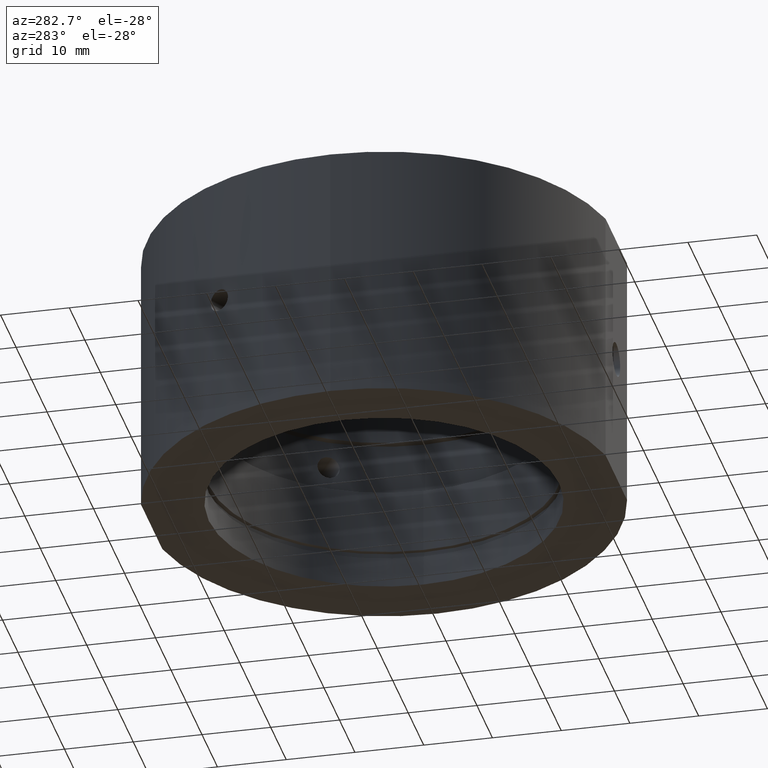
[diagram: clean part render]
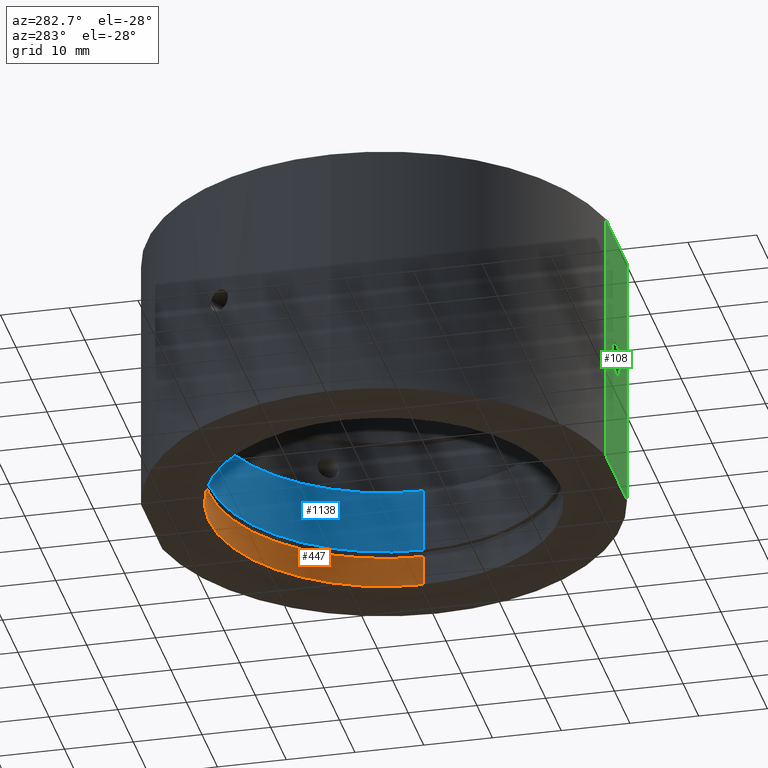
[diagram: same view with three faces highlighted in distinct colors, each labeled with its STEP entity id]
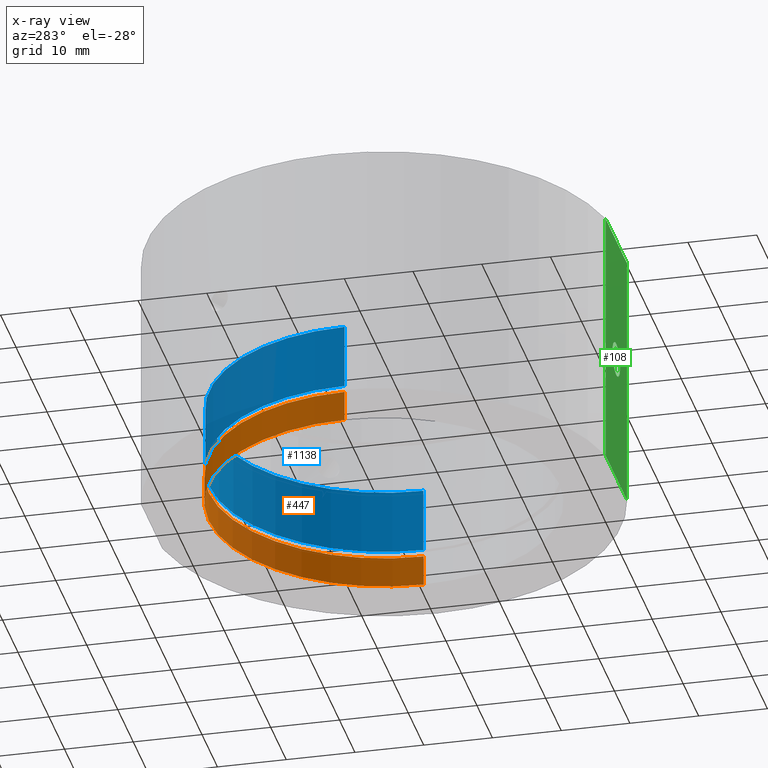
[diagram: x-ray of the same camera — body ghosted, the three highlighted faces saturated]
A machine part, auxiliary view with three faces highlighted in distinct colors.
The next image is the same camera in x-ray (body ghosted, the three faces saturated) — at least one of them is partly hidden behind the body in this view.
Their STEP definitions:

[orange] entity #447 — the highlighted cylindrical surface (partial cylindrical patch) has radius 25.5 mm, axis along (-0, -0, -1).
#12 = DIRECTION ( 'NONE',  ( -1.224646799147350500E-016, -0.0000000000000000000, -1.000000000000000000 ) ) ;
#17 = DIRECTION ( 'NONE',  ( -1.000000000000000000, 0.0000000000000000000, 1.360567432138672300E-016 ) ) ;
#31 = LINE ( 'NONE', #1313, #428 ) ;
#78 = CARTESIAN_POINT ( 'NONE',  ( 1.584578833305349900E-015, 0.0000000000000000000, -19.00000000000000000 ) ) ;
#236 = CARTESIAN_POINT ( 'NONE',  ( -25.50000000000000000, 0.0000000000000000000, -18.99999999999999600 ) ) ;
#383 = CARTESIAN_POINT ( 'NONE',  ( 0.0000000000000000000, 0.0000000000000000000, -31.93906810035839800 ) ) ;
#428 = VECTOR ( 'NONE', #655, 1000.000000000000000 ) ;
#447 = ADVANCED_FACE ( 'NONE', ( #799 ), #628, .F. ) ;
#448 = AXIS2_PLACEMENT_3D ( 'NONE', #78, #1367, #1255 ) ;
#489 = ORIENTED_EDGE ( 'NONE', *, *, #959, .F. ) ;
#509 = DIRECTION ( 'NONE',  ( -1.224646799147350500E-016, -0.0000000000000000000, -1.000000000000000000 ) ) ;
#552 = EDGE_LOOP ( 'NONE', ( #489, #1031, #561, #1102 ) ) ;
#561 = ORIENTED_EDGE ( 'NONE', *, *, #1432, .T. ) ;
#568 = LINE ( 'NONE', #835, #985 ) ;
#628 = CYLINDRICAL_SURFACE ( 'NONE', #1333, 25.49999999999999600 ) ;
#638 = VERTEX_POINT ( 'NONE', #1126 ) ;
#655 = DIRECTION ( 'NONE',  ( -1.224646799147350500E-016, -0.0000000000000000000, -1.000000000000000000 ) ) ;
#799 = FACE_OUTER_BOUND ( 'NONE', #552, .T. ) ;
#812 = DIRECTION ( 'NONE',  ( -1.000000000000000000, 0.0000000000000000000, 0.0000000000000000000 ) ) ;
#835 = CARTESIAN_POINT ( 'NONE',  ( 25.49999999999999600, 3.122849337825749800E-015, -31.93906810035839800 ) ) ;
#952 = VERTEX_POINT ( 'NONE', #1406 ) ;
#959 = EDGE_CURVE ( 'NONE', #1323, #952, #568, .T. ) ;
#985 = VECTOR ( 'NONE', #509, 1000.000000000000000 ) ;
#999 = CARTESIAN_POINT ( 'NONE',  ( 2.135669892921657900E-015, 0.0000000000000000000, -14.49999999999999800 ) ) ;
#1030 = DIRECTION ( 'NONE',  ( -1.224646799147350500E-016, -0.0000000000000000000, -1.000000000000000000 ) ) ;
#1031 = ORIENTED_EDGE ( 'NONE', *, *, #1201, .F. ) ;
#1048 = VERTEX_POINT ( 'NONE', #236 ) ;
#1102 = ORIENTED_EDGE ( 'NONE', *, *, #1413, .T. ) ;
#1126 = CARTESIAN_POINT ( 'NONE',  ( -25.49999999999999300, 0.0000000000000000000, -14.49999999999999500 ) ) ;
#1201 = EDGE_CURVE ( 'NONE', #638, #1323, #1344, .T. ) ;
#1255 = DIRECTION ( 'NONE',  ( -1.000000000000000000, 0.0000000000000000000, 1.360567432138672300E-016 ) ) ;
#1274 = CIRCLE ( 'NONE', #448, 25.50000000000000000 ) ;
#1291 = CARTESIAN_POINT ( 'NONE',  ( 25.50000000000000400, 3.122849337825750600E-015, -14.50000000000000200 ) ) ;
#1313 = CARTESIAN_POINT ( 'NONE',  ( -25.49999999999999600, 0.0000000000000000000, -31.93906810035839800 ) ) ;
#1323 = VERTEX_POINT ( 'NONE', #1291 ) ;
#1333 = AXIS2_PLACEMENT_3D ( 'NONE', #383, #1030, #812 ) ;
#1344 = CIRCLE ( 'NONE', #1440, 25.49999999999999600 ) ;
#1367 = DIRECTION ( 'NONE',  ( -1.224646799147350500E-016, -0.0000000000000000000, -1.000000000000000000 ) ) ;
#1406 = CARTESIAN_POINT ( 'NONE',  ( 25.50000000000000400, 3.122849337825750600E-015, -19.00000000000000400 ) ) ;
#1413 = EDGE_CURVE ( 'NONE', #1048, #952, #1274, .T. ) ;
#1432 = EDGE_CURVE ( 'NONE', #638, #1048, #31, .T. ) ;
#1440 = AXIS2_PLACEMENT_3D ( 'NONE', #999, #12, #17 ) ;

[blue] entity #1138 — the highlighted cylindrical surface (partial cylindrical patch) has radius 25.4 mm, axis along (-0, -0, -1).
#8 = DIRECTION ( 'NONE',  ( -1.000000000000000000, 0.0000000000000000000, 0.0000000000000000000 ) ) ;
#26 = EDGE_CURVE ( 'NONE', #1355, #321, #1393, .T. ) ;
#53 = CARTESIAN_POINT ( 'NONE',  ( 2.258134572836392600E-015, 0.0000000000000000000, -13.50000000000000200 ) ) ;
#67 = DIRECTION ( 'NONE',  ( -1.224646799147350500E-016, -0.0000000000000000000, -1.000000000000000000 ) ) ;
#84 = CARTESIAN_POINT ( 'NONE',  ( -25.39999999999999500, 0.0000000000000000000, -13.49999999999999800 ) ) ;
#123 = CARTESIAN_POINT ( 'NONE',  ( 0.0000000000000000000, 0.0000000000000000000, -31.93906810035839800 ) ) ;
#162 = CARTESIAN_POINT ( 'NONE',  ( 25.40000000000000200, 3.110602869834276900E-015, -13.50000000000000500 ) ) ;
#181 = CYLINDRICAL_SURFACE ( 'NONE', #534, 25.39999999999999900 ) ;
#188 = CARTESIAN_POINT ( 'NONE',  ( 3.421549032026375300E-015, 0.0000000000000000000, -4.000000000000000000 ) ) ;
#256 = EDGE_CURVE ( 'NONE', #321, #867, #463, .T. ) ;
#310 = DIRECTION ( 'NONE',  ( -1.224646799147350500E-016, -0.0000000000000000000, -1.000000000000000000 ) ) ;
#321 = VERTEX_POINT ( 'NONE', #84 ) ;
#331 = VECTOR ( 'NONE', #582, 1000.000000000000000 ) ;
#415 = LINE ( 'NONE', #1349, #331 ) ;
#422 = AXIS2_PLACEMENT_3D ( 'NONE', #188, #310, #753 ) ;
#463 = CIRCLE ( 'NONE', #1331, 25.39999999999999900 ) ;
#533 = CARTESIAN_POINT ( 'NONE',  ( -25.39999999999999900, 0.0000000000000000000, -31.93906810035839800 ) ) ;
#534 = AXIS2_PLACEMENT_3D ( 'NONE', #123, #1236, #8 ) ;
#535 = VERTEX_POINT ( 'NONE', #1128 ) ;
#537 = VECTOR ( 'NONE', #67, 1000.000000000000000 ) ;
#582 = DIRECTION ( 'NONE',  ( -1.224646799147350500E-016, -0.0000000000000000000, -1.000000000000000000 ) ) ;
#635 = DIRECTION ( 'NONE',  ( -1.000000000000000000, 0.0000000000000000000, 1.365923996832131600E-016 ) ) ;
#724 = CIRCLE ( 'NONE', #422, 25.39999999999999900 ) ;
#753 = DIRECTION ( 'NONE',  ( -1.000000000000000000, 0.0000000000000000000, 1.365923996832131600E-016 ) ) ;
#867 = VERTEX_POINT ( 'NONE', #162 ) ;
#958 = ORIENTED_EDGE ( 'NONE', *, *, #26, .T. ) ;
#973 = CARTESIAN_POINT ( 'NONE',  ( -25.39999999999999500, 0.0000000000000000000, -3.999999999999996400 ) ) ;
#991 = ORIENTED_EDGE ( 'NONE', *, *, #1348, .F. ) ;
#1095 = EDGE_CURVE ( 'NONE', #535, #867, #415, .T. ) ;
#1128 = CARTESIAN_POINT ( 'NONE',  ( 25.40000000000000200, 3.110602869834276900E-015, -4.000000000000003600 ) ) ;
#1132 = ORIENTED_EDGE ( 'NONE', *, *, #256, .T. ) ;
#1138 = ADVANCED_FACE ( 'NONE', ( #1320 ), #181, .F. ) ;
#1236 = DIRECTION ( 'NONE',  ( -1.224646799147350500E-016, -0.0000000000000000000, -1.000000000000000000 ) ) ;
#1290 = DIRECTION ( 'NONE',  ( -1.224646799147350500E-016, -0.0000000000000000000, -1.000000000000000000 ) ) ;
#1320 = FACE_OUTER_BOUND ( 'NONE', #1374, .T. ) ;
#1331 = AXIS2_PLACEMENT_3D ( 'NONE', #53, #1290, #635 ) ;
#1348 = EDGE_CURVE ( 'NONE', #1355, #535, #724, .T. ) ;
#1349 = CARTESIAN_POINT ( 'NONE',  ( 25.39999999999999900, 3.110602869834276900E-015, -31.93906810035839800 ) ) ;
#1355 = VERTEX_POINT ( 'NONE', #973 ) ;
#1374 = EDGE_LOOP ( 'NONE', ( #1412, #991, #958, #1132 ) ) ;
#1393 = LINE ( 'NONE', #533, #537 ) ;
#1412 = ORIENTED_EDGE ( 'NONE', *, *, #1095, .F. ) ;

[green] entity #108 — the highlighted planar face has unit normal (-0, 1, 0).
#11 = EDGE_LOOP ( 'NONE', ( #281, #868 ) ) ;
#85 = DIRECTION ( 'NONE',  ( -0.0000000000000000000, -1.000000000000000000, -0.0000000000000000000 ) ) ;
#108 = ADVANCED_FACE ( 'NONE', ( #126, #444 ), #260, .F. ) ;
#120 = VECTOR ( 'NONE', #512, 1000.000000000000000 ) ;
#126 = FACE_BOUND ( 'NONE', #11, .T. ) ;
#141 = DIRECTION ( 'NONE',  ( 1.000000000000000000, 0.0000000000000000000, -1.224646799147350500E-016 ) ) ;
#145 = DIRECTION ( 'NONE',  ( 0.0000000000000000000, -0.0000000000000000000, 1.000000000000000000 ) ) ;
#197 = AXIS2_PLACEMENT_3D ( 'NONE', #532, #85, #1302 ) ;
#212 = VERTEX_POINT ( 'NONE', #743 ) ;
#230 = ORIENTED_EDGE ( 'NONE', *, *, #242, .F. ) ;
#237 = VECTOR ( 'NONE', #700, 1000.000000000000000 ) ;
#242 = EDGE_CURVE ( 'NONE', #339, #212, #1226, .T. ) ;
#260 = PLANE ( 'NONE',  #1353 ) ;
#281 = ORIENTED_EDGE ( 'NONE', *, *, #577, .F. ) ;
#294 = DIRECTION ( 'NONE',  ( -1.000000000000000000, -0.0000000000000000000, 1.224646799147350500E-016 ) ) ;
#313 = CARTESIAN_POINT ( 'NONE',  ( 6.914477565225038100, -33.79999999999999700, -19.00000000000000000 ) ) ;
#326 = VERTEX_POINT ( 'NONE', #1195 ) ;
#339 = VERTEX_POINT ( 'NONE', #313 ) ;
#346 = LINE ( 'NONE', #833, #120 ) ;
#376 = CARTESIAN_POINT ( 'NONE',  ( 6.914477565225098500, -33.79999999999998300, -31.93906810035839800 ) ) ;
#379 = CARTESIAN_POINT ( 'NONE',  ( 34.50000000000000700, -33.79999999999999700, 18.99999999999999600 ) ) ;
#387 = VECTOR ( 'NONE', #294, 1000.000000000000000 ) ;
#408 = ORIENTED_EDGE ( 'NONE', *, *, #471, .F. ) ;
#444 = FACE_OUTER_BOUND ( 'NONE', #925, .T. ) ;
#446 = LINE ( 'NONE', #379, #1383 ) ;
#471 = EDGE_CURVE ( 'NONE', #1033, #339, #784, .T. ) ;
#512 = DIRECTION ( 'NONE',  ( 1.224646799147350500E-016, 0.0000000000000000000, 1.000000000000000000 ) ) ;
#532 = CARTESIAN_POINT ( 'NONE',  ( 5.204170427930421300E-015, -33.79999999999999700, 0.0000000000000000000 ) ) ;
#536 = ORIENTED_EDGE ( 'NONE', *, *, #747, .F. ) ;
#577 = EDGE_CURVE ( 'NONE', #326, #1292, #1444, .T. ) ;
#612 = CARTESIAN_POINT ( 'NONE',  ( -33.15197265346817100, -33.79999999999999700, -30.00000000000002500 ) ) ;
#700 = DIRECTION ( 'NONE',  ( -1.224646799147350500E-016, -0.0000000000000000000, -1.000000000000000000 ) ) ;
#743 = CARTESIAN_POINT ( 'NONE',  ( -6.914477565225096700, -33.79999999999998300, -18.99999999999999600 ) ) ;
#747 = EDGE_CURVE ( 'NONE', #1056, #1033, #446, .T. ) ;
#784 = LINE ( 'NONE', #376, #237 ) ;
#794 = CARTESIAN_POINT ( 'NONE',  ( 6.914477565225042500, -33.79999999999999700, 19.00000000000000400 ) ) ;
#801 = CARTESIAN_POINT ( 'NONE',  ( -6.914477565225028300, -33.79999999999999700, 19.00000000000000000 ) ) ;
#833 = CARTESIAN_POINT ( 'NONE',  ( -6.914477565225098500, -33.79999999999998300, -31.93906810035839800 ) ) ;
#868 = ORIENTED_EDGE ( 'NONE', *, *, #1400, .F. ) ;
#904 = ORIENTED_EDGE ( 'NONE', *, *, #1324, .F. ) ;
#910 = DIRECTION ( 'NONE',  ( -0.0000000000000000000, 1.000000000000000000, 0.0000000000000000000 ) ) ;
#925 = EDGE_LOOP ( 'NONE', ( #536, #904, #230, #408 ) ) ;
#1033 = VERTEX_POINT ( 'NONE', #794 ) ;
#1056 = VERTEX_POINT ( 'NONE', #801 ) ;
#1083 = CIRCLE ( 'NONE', #197, 2.499999999999999100 ) ;
#1108 = DIRECTION ( 'NONE',  ( -0.0000000000000000000, -1.000000000000000000, -0.0000000000000000000 ) ) ;
#1186 = AXIS2_PLACEMENT_3D ( 'NONE', #1347, #1108, #1223 ) ;
#1195 = CARTESIAN_POINT ( 'NONE',  ( 5.204170427930421300E-015, -33.79999999999999700, -2.499999999999999100 ) ) ;
#1223 = DIRECTION ( 'NONE',  ( 0.0000000000000000000, 0.0000000000000000000, -1.000000000000000000 ) ) ;
#1226 = LINE ( 'NONE', #1301, #387 ) ;
#1292 = VERTEX_POINT ( 'NONE', #1386 ) ;
#1301 = CARTESIAN_POINT ( 'NONE',  ( 25.50000000000000000, -33.79999999999999700, -19.00000000000000400 ) ) ;
#1302 = DIRECTION ( 'NONE',  ( 0.0000000000000000000, 0.0000000000000000000, -1.000000000000000000 ) ) ;
#1324 = EDGE_CURVE ( 'NONE', #212, #1056, #346, .T. ) ;
#1347 = CARTESIAN_POINT ( 'NONE',  ( 5.204170427930421300E-015, -33.79999999999999700, 0.0000000000000000000 ) ) ;
#1353 = AXIS2_PLACEMENT_3D ( 'NONE', #612, #910, #145 ) ;
#1383 = VECTOR ( 'NONE', #141, 1000.000000000000000 ) ;
#1386 = CARTESIAN_POINT ( 'NONE',  ( 5.510332127717259900E-015, -33.79999999999999700, 2.499999999999999100 ) ) ;
#1400 = EDGE_CURVE ( 'NONE', #1292, #326, #1083, .T. ) ;
#1444 = CIRCLE ( 'NONE', #1186, 2.499999999999999100 ) ;